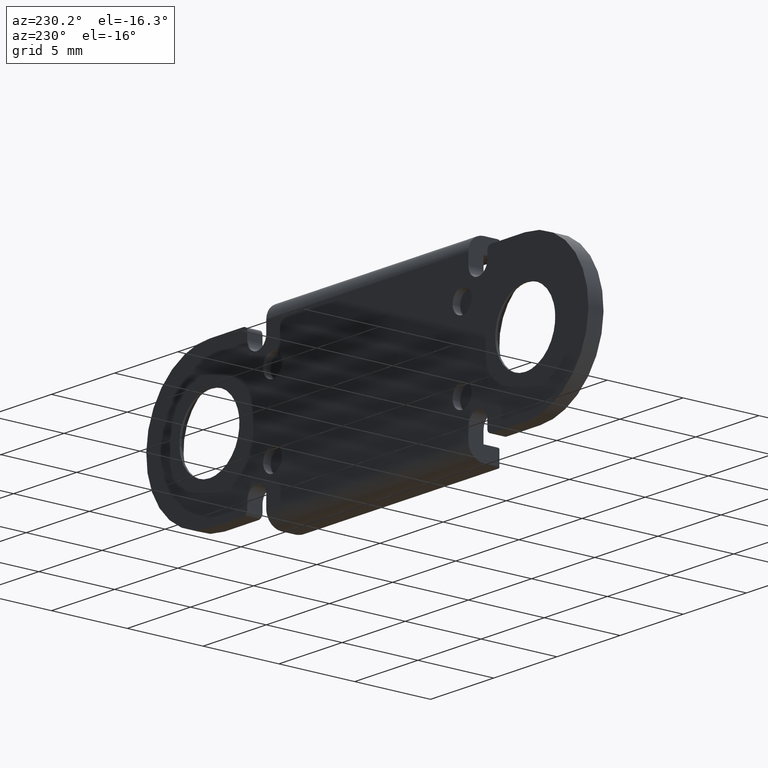
[diagram: clean part render]
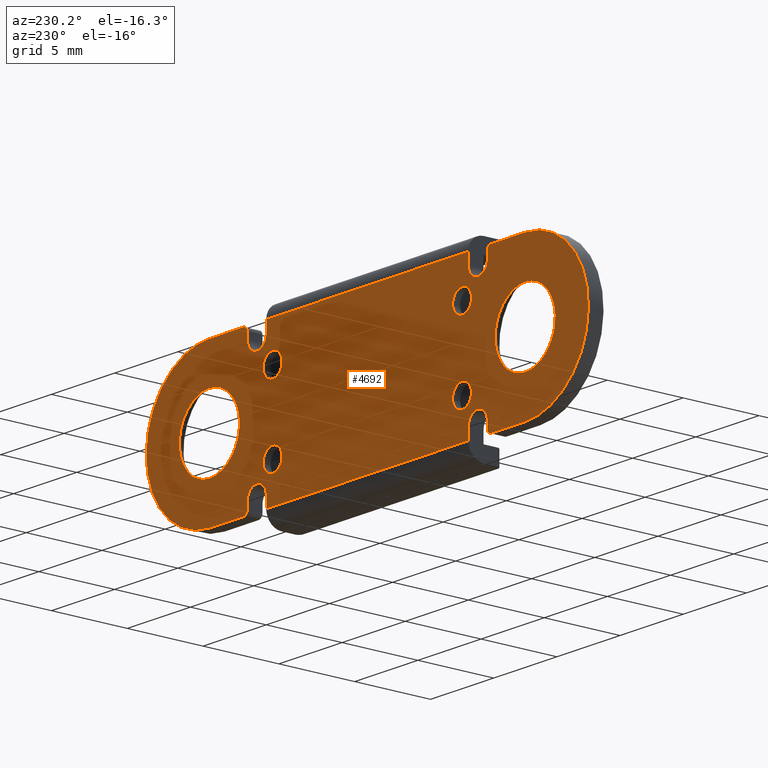
[diagram: same view with one face highlighted and labeled with its STEP entity id]
A machine part, auxiliary view. The second image highlights one B-rep face of the part: STEP entity #4692.
In plain terms, the highlighted face is a freeform B-spline surface patch.
Its self-contained STEP definition (entity closure, byte-faithful):
#1360=CARTESIAN_POINT('',(-8.247688000299576,6.938894E-018,2.558844321799307));
#1361=VERTEX_POINT('',#1360);
#1367=CARTESIAN_POINT('',(-7.500000000000000,0.0,3.250000000000000));
#1368=VERTEX_POINT('',#1367);
#1369=CARTESIAN_POINT('',(-7.500000000000000,0.0,3.250000000000000));
#1370=CARTESIAN_POINT('',(-8.193292868740469,0.0,3.250000000000000));
#1371=CARTESIAN_POINT('',(-8.247688000299577,0.0,2.558844321799308));
#1379=(BOUNDED_CURVE()B_SPLINE_CURVE(2,(#1369,#1370,#1371),.UNSPECIFIED.,.F.,.U.)B_SPLINE_CURVE_WITH_KNOTS((3,3),(0.0,0.236331300631982),.UNSPECIFIED.)CURVE()GEOMETRIC_REPRESENTATION_ITEM()RATIONAL_B_SPLINE_CURVE((1.0,0.723120658606116,0.969723356170177))REPRESENTATION_ITEM(''));
#1380=EDGE_CURVE('',#1368,#1361,#1379,.T.);
#1382=CARTESIAN_POINT('',(-6.752311999700424,6.938894E-018,2.441155678200693));
#1383=VERTEX_POINT('',#1382);
#1384=CARTESIAN_POINT('',(-6.752311999700424,0.0,2.441155678200694));
#1385=CARTESIAN_POINT('',(-6.750000000000000,0.0,2.470532419742528));
#1386=CARTESIAN_POINT('',(-6.750000000000000,0.0,2.500000000000000));
#1387=CARTESIAN_POINT('',(-6.750000000000000,0.0,3.250000000000000));
#1388=CARTESIAN_POINT('',(-7.500000000000000,0.0,3.250000000000000));
#1396=(BOUNDED_CURVE()B_SPLINE_CURVE(2,(#1384,#1385,#1386,#1387,#1388),.UNSPECIFIED.,.F.,.U.)B_SPLINE_CURVE_WITH_KNOTS((3,2,3),(0.736331300631982,0.750000000000000,1.0),.UNSPECIFIED.)CURVE()GEOMETRIC_REPRESENTATION_ITEM()RATIONAL_B_SPLINE_CURVE((0.969723356170177,0.983986122580431,1.0,0.707106781186548,1.0))REPRESENTATION_ITEM(''));
#1397=EDGE_CURVE('',#1383,#1368,#1396,.T.);
#1429=CARTESIAN_POINT('',(-7.500000000000000,0.0,1.750000000000000));
#1430=VERTEX_POINT('',#1429);
#1431=CARTESIAN_POINT('',(-7.500000000000000,0.0,1.750000000000000));
#1432=CARTESIAN_POINT('',(-6.806707131259529,0.0,1.749999999999999));
#1433=CARTESIAN_POINT('',(-6.752311999700424,0.0,2.441155678200694));
#1441=(BOUNDED_CURVE()B_SPLINE_CURVE(2,(#1431,#1432,#1433),.UNSPECIFIED.,.F.,.U.)B_SPLINE_CURVE_WITH_KNOTS((3,3),(0.500000000000000,0.736331300631982),.UNSPECIFIED.)CURVE()GEOMETRIC_REPRESENTATION_ITEM()RATIONAL_B_SPLINE_CURVE((1.0,0.723120658606116,0.969723356170177))REPRESENTATION_ITEM(''));
#1442=EDGE_CURVE('',#1430,#1383,#1441,.T.);
#1444=CARTESIAN_POINT('',(-8.247688000299577,0.0,2.558844321799308));
#1445=CARTESIAN_POINT('',(-8.250000000000000,0.0,2.529467580257473));
#1446=CARTESIAN_POINT('',(-8.250000000000000,0.0,2.500000000000000));
#1447=CARTESIAN_POINT('',(-8.250000000000000,0.0,1.750000000000000));
#1448=CARTESIAN_POINT('',(-7.500000000000000,0.0,1.750000000000000));
#1456=(BOUNDED_CURVE()B_SPLINE_CURVE(2,(#1444,#1445,#1446,#1447,#1448),.UNSPECIFIED.,.F.,.U.)B_SPLINE_CURVE_WITH_KNOTS((3,2,3),(0.236331300631982,0.250000000000000,0.500000000000000),.UNSPECIFIED.)CURVE()GEOMETRIC_REPRESENTATION_ITEM()RATIONAL_B_SPLINE_CURVE((0.969723356170177,0.983986122580431,1.0,0.707106781186548,1.0))REPRESENTATION_ITEM(''));
#1457=EDGE_CURVE('',#1361,#1430,#1456,.T.);
#1482=CARTESIAN_POINT('',(-8.247688000299576,6.938894E-018,-2.441155678200693));
#1483=VERTEX_POINT('',#1482);
#1489=CARTESIAN_POINT('',(-7.500000000000000,0.0,-1.750000000000000));
#1490=VERTEX_POINT('',#1489);
#1491=CARTESIAN_POINT('',(-7.500000000000000,0.0,-1.750000000000000));
#1492=CARTESIAN_POINT('',(-8.193292868740469,0.0,-1.749999999999999));
#1493=CARTESIAN_POINT('',(-8.247688000299577,0.0,-2.441155678200694));
#1501=(BOUNDED_CURVE()B_SPLINE_CURVE(2,(#1491,#1492,#1493),.UNSPECIFIED.,.F.,.U.)B_SPLINE_CURVE_WITH_KNOTS((3,3),(0.0,0.236331300631982),.UNSPECIFIED.)CURVE()GEOMETRIC_REPRESENTATION_ITEM()RATIONAL_B_SPLINE_CURVE((1.0,0.723120658606116,0.969723356170177))REPRESENTATION_ITEM(''));
#1502=EDGE_CURVE('',#1490,#1483,#1501,.T.);
#1504=CARTESIAN_POINT('',(-6.752311999700424,6.938894E-018,-2.558844321799307));
#1505=VERTEX_POINT('',#1504);
#1506=CARTESIAN_POINT('',(-6.752311999700424,0.0,-2.558844321799308));
#1507=CARTESIAN_POINT('',(-6.750000000000000,0.0,-2.529467580257472));
#1508=CARTESIAN_POINT('',(-6.750000000000000,0.0,-2.500000000000000));
#1509=CARTESIAN_POINT('',(-6.750000000000000,0.0,-1.750000000000000));
#1510=CARTESIAN_POINT('',(-7.500000000000000,0.0,-1.750000000000000));
#1518=(BOUNDED_CURVE()B_SPLINE_CURVE(2,(#1506,#1507,#1508,#1509,#1510),.UNSPECIFIED.,.F.,.U.)B_SPLINE_CURVE_WITH_KNOTS((3,2,3),(0.736331300631982,0.750000000000000,1.0),.UNSPECIFIED.)CURVE()GEOMETRIC_REPRESENTATION_ITEM()RATIONAL_B_SPLINE_CURVE((0.969723356170177,0.983986122580431,1.0,0.707106781186548,1.0))REPRESENTATION_ITEM(''));
#1519=EDGE_CURVE('',#1505,#1490,#1518,.T.);
#1551=CARTESIAN_POINT('',(-7.500000000000000,0.0,-3.250000000000000));
#1552=VERTEX_POINT('',#1551);
#1553=CARTESIAN_POINT('',(-7.500000000000000,0.0,-3.250000000000000));
#1554=CARTESIAN_POINT('',(-6.806707131259529,0.0,-3.250000000000000));
#1555=CARTESIAN_POINT('',(-6.752311999700424,0.0,-2.558844321799308));
#1563=(BOUNDED_CURVE()B_SPLINE_CURVE(2,(#1553,#1554,#1555),.UNSPECIFIED.,.F.,.U.)B_SPLINE_CURVE_WITH_KNOTS((3,3),(0.500000000000000,0.736331300631982),.UNSPECIFIED.)CURVE()GEOMETRIC_REPRESENTATION_ITEM()RATIONAL_B_SPLINE_CURVE((1.0,0.723120658606116,0.969723356170177))REPRESENTATION_ITEM(''));
#1564=EDGE_CURVE('',#1552,#1505,#1563,.T.);
#1566=CARTESIAN_POINT('',(-8.247688000299577,0.0,-2.441155678200693));
#1567=CARTESIAN_POINT('',(-8.250000000000002,0.0,-2.470532419742528));
#1568=CARTESIAN_POINT('',(-8.250000000000000,0.0,-2.500000000000000));
#1569=CARTESIAN_POINT('',(-8.250000000000000,0.0,-3.250000000000000));
#1570=CARTESIAN_POINT('',(-7.500000000000000,0.0,-3.250000000000000));
#1578=(BOUNDED_CURVE()B_SPLINE_CURVE(2,(#1566,#1567,#1568,#1569,#1570),.UNSPECIFIED.,.F.,.U.)B_SPLINE_CURVE_WITH_KNOTS((3,2,3),(0.236331300631982,0.250000000000000,0.500000000000000),.UNSPECIFIED.)CURVE()GEOMETRIC_REPRESENTATION_ITEM()RATIONAL_B_SPLINE_CURVE((0.969723356170178,0.983986122580431,1.0,0.707106781186548,1.0))REPRESENTATION_ITEM(''));
#1579=EDGE_CURVE('',#1483,#1552,#1578,.T.);
#1604=CARTESIAN_POINT('',(6.752311999700424,6.938894E-018,2.558844321799307));
#1605=VERTEX_POINT('',#1604);
#1611=CARTESIAN_POINT('',(7.500000000000000,0.0,3.250000000000000));
#1612=VERTEX_POINT('',#1611);
#1613=CARTESIAN_POINT('',(7.500000000000000,0.0,3.250000000000000));
#1614=CARTESIAN_POINT('',(6.806707131259529,0.0,3.250000000000000));
#1615=CARTESIAN_POINT('',(6.752311999700423,0.0,2.558844321799308));
#1623=(BOUNDED_CURVE()B_SPLINE_CURVE(2,(#1613,#1614,#1615),.UNSPECIFIED.,.F.,.U.)B_SPLINE_CURVE_WITH_KNOTS((3,3),(0.0,0.236331300631982),.UNSPECIFIED.)CURVE()GEOMETRIC_REPRESENTATION_ITEM()RATIONAL_B_SPLINE_CURVE((1.0,0.723120658606116,0.969723356170177))REPRESENTATION_ITEM(''));
#1624=EDGE_CURVE('',#1612,#1605,#1623,.T.);
#1626=CARTESIAN_POINT('',(8.247688000299576,6.938894E-018,2.441155678200693));
#1627=VERTEX_POINT('',#1626);
#1628=CARTESIAN_POINT('',(8.247688000299577,0.0,2.441155678200694));
#1629=CARTESIAN_POINT('',(8.250000000000000,0.0,2.470532419742528));
#1630=CARTESIAN_POINT('',(8.250000000000000,0.0,2.500000000000000));
#1631=CARTESIAN_POINT('',(8.250000000000000,0.0,3.250000000000000));
#1632=CARTESIAN_POINT('',(7.500000000000000,0.0,3.250000000000000));
#1640=(BOUNDED_CURVE()B_SPLINE_CURVE(2,(#1628,#1629,#1630,#1631,#1632),.UNSPECIFIED.,.F.,.U.)B_SPLINE_CURVE_WITH_KNOTS((3,2,3),(0.736331300631982,0.750000000000000,1.0),.UNSPECIFIED.)CURVE()GEOMETRIC_REPRESENTATION_ITEM()RATIONAL_B_SPLINE_CURVE((0.969723356170177,0.983986122580431,1.0,0.707106781186548,1.0))REPRESENTATION_ITEM(''));
#1641=EDGE_CURVE('',#1627,#1612,#1640,.T.);
#1673=CARTESIAN_POINT('',(7.500000000000000,0.0,1.750000000000000));
#1674=VERTEX_POINT('',#1673);
#1675=CARTESIAN_POINT('',(7.500000000000000,0.0,1.750000000000000));
#1676=CARTESIAN_POINT('',(8.193292868740469,0.0,1.749999999999999));
#1677=CARTESIAN_POINT('',(8.247688000299577,0.0,2.441155678200694));
#1685=(BOUNDED_CURVE()B_SPLINE_CURVE(2,(#1675,#1676,#1677),.UNSPECIFIED.,.F.,.U.)B_SPLINE_CURVE_WITH_KNOTS((3,3),(0.500000000000000,0.736331300631982),.UNSPECIFIED.)CURVE()GEOMETRIC_REPRESENTATION_ITEM()RATIONAL_B_SPLINE_CURVE((1.0,0.723120658606116,0.969723356170177))REPRESENTATION_ITEM(''));
#1686=EDGE_CURVE('',#1674,#1627,#1685,.T.);
#1688=CARTESIAN_POINT('',(6.752311999700424,0.0,2.558844321799307));
#1689=CARTESIAN_POINT('',(6.750000000000000,0.0,2.529467580257472));
#1690=CARTESIAN_POINT('',(6.750000000000000,0.0,2.500000000000000));
#1691=CARTESIAN_POINT('',(6.750000000000000,0.0,1.750000000000000));
#1692=CARTESIAN_POINT('',(7.500000000000000,0.0,1.750000000000000));
#1700=(BOUNDED_CURVE()B_SPLINE_CURVE(2,(#1688,#1689,#1690,#1691,#1692),.UNSPECIFIED.,.F.,.U.)B_SPLINE_CURVE_WITH_KNOTS((3,2,3),(0.236331300631982,0.250000000000000,0.500000000000000),.UNSPECIFIED.)CURVE()GEOMETRIC_REPRESENTATION_ITEM()RATIONAL_B_SPLINE_CURVE((0.969723356170178,0.983986122580431,1.0,0.707106781186548,1.0))REPRESENTATION_ITEM(''));
#1701=EDGE_CURVE('',#1605,#1674,#1700,.T.);
#1726=CARTESIAN_POINT('',(6.752311999700424,6.938894E-018,-2.441155678200693));
#1727=VERTEX_POINT('',#1726);
#1733=CARTESIAN_POINT('',(7.500000000000000,0.0,-1.750000000000000));
#1734=VERTEX_POINT('',#1733);
#1735=CARTESIAN_POINT('',(7.500000000000000,0.0,-1.750000000000000));
#1736=CARTESIAN_POINT('',(6.806707131259529,0.0,-1.749999999999999));
#1737=CARTESIAN_POINT('',(6.752311999700424,0.0,-2.441155678200693));
#1745=(BOUNDED_CURVE()B_SPLINE_CURVE(2,(#1735,#1736,#1737),.UNSPECIFIED.,.F.,.U.)B_SPLINE_CURVE_WITH_KNOTS((3,3),(0.0,0.236331300631982),.UNSPECIFIED.)CURVE()GEOMETRIC_REPRESENTATION_ITEM()RATIONAL_B_SPLINE_CURVE((1.0,0.723120658606116,0.969723356170178))REPRESENTATION_ITEM(''));
#1746=EDGE_CURVE('',#1734,#1727,#1745,.T.);
#1748=CARTESIAN_POINT('',(8.247688000299576,6.938894E-018,-2.558844321799307));
#1749=VERTEX_POINT('',#1748);
#1750=CARTESIAN_POINT('',(8.247688000299577,0.0,-2.558844321799308));
#1751=CARTESIAN_POINT('',(8.250000000000000,0.0,-2.529467580257472));
#1752=CARTESIAN_POINT('',(8.250000000000000,0.0,-2.500000000000000));
#1753=CARTESIAN_POINT('',(8.250000000000000,0.0,-1.750000000000000));
#1754=CARTESIAN_POINT('',(7.500000000000000,0.0,-1.750000000000000));
#1762=(BOUNDED_CURVE()B_SPLINE_CURVE(2,(#1750,#1751,#1752,#1753,#1754),.UNSPECIFIED.,.F.,.U.)B_SPLINE_CURVE_WITH_KNOTS((3,2,3),(0.736331300631982,0.750000000000000,1.0),.UNSPECIFIED.)CURVE()GEOMETRIC_REPRESENTATION_ITEM()RATIONAL_B_SPLINE_CURVE((0.969723356170177,0.983986122580431,1.0,0.707106781186548,1.0))REPRESENTATION_ITEM(''));
#1763=EDGE_CURVE('',#1749,#1734,#1762,.T.);
#1795=CARTESIAN_POINT('',(7.500000000000000,0.0,-3.250000000000000));
#1796=VERTEX_POINT('',#1795);
#1797=CARTESIAN_POINT('',(7.500000000000000,0.0,-3.250000000000000));
#1798=CARTESIAN_POINT('',(8.193292868740469,0.0,-3.250000000000000));
#1799=CARTESIAN_POINT('',(8.247688000299577,0.0,-2.558844321799308));
#1807=(BOUNDED_CURVE()B_SPLINE_CURVE(2,(#1797,#1798,#1799),.UNSPECIFIED.,.F.,.U.)B_SPLINE_CURVE_WITH_KNOTS((3,3),(0.500000000000000,0.736331300631982),.UNSPECIFIED.)CURVE()GEOMETRIC_REPRESENTATION_ITEM()RATIONAL_B_SPLINE_CURVE((1.0,0.723120658606116,0.969723356170177))REPRESENTATION_ITEM(''));
#1808=EDGE_CURVE('',#1796,#1749,#1807,.T.);
#1810=CARTESIAN_POINT('',(6.752311999700424,0.0,-2.441155678200693));
#1811=CARTESIAN_POINT('',(6.750000000000000,0.0,-2.470532419742528));
#1812=CARTESIAN_POINT('',(6.750000000000000,0.0,-2.500000000000000));
#1813=CARTESIAN_POINT('',(6.750000000000000,0.0,-3.250000000000000));
#1814=CARTESIAN_POINT('',(7.500000000000000,0.0,-3.250000000000000));
#1822=(BOUNDED_CURVE()B_SPLINE_CURVE(2,(#1810,#1811,#1812,#1813,#1814),.UNSPECIFIED.,.F.,.U.)B_SPLINE_CURVE_WITH_KNOTS((3,2,3),(0.236331300631982,0.250000000000000,0.500000000000000),.UNSPECIFIED.)CURVE()GEOMETRIC_REPRESENTATION_ITEM()RATIONAL_B_SPLINE_CURVE((0.969723356170178,0.983986122580431,1.0,0.707106781186548,1.0))REPRESENTATION_ITEM(''));
#1823=EDGE_CURVE('',#1727,#1796,#1822,.T.);
#2343=CARTESIAN_POINT('',(-10.129429853752740,4.553649E-018,-0.144990281412709));
#2344=VERTEX_POINT('',#2343);
#2384=CARTESIAN_POINT('',(-14.870570146242700,4.553649E-018,0.144990281412709));
#2385=VERTEX_POINT('',#2384);
#2391=CARTESIAN_POINT('',(-12.499999999997719,0.0,2.374999999995310));
#2392=VERTEX_POINT('',#2391);
#2393=CARTESIAN_POINT('',(-12.499999999997719,0.0,2.374999999995310));
#2394=CARTESIAN_POINT('',(-14.734176908876954,2.276825E-018,2.374999999995274));
#2395=CARTESIAN_POINT('',(-14.870570146242695,4.553649E-018,0.144990281412709));
#2403=(BOUNDED_CURVE()B_SPLINE_CURVE(2,(#2393,#2394,#2395),.UNSPECIFIED.,.F.,.U.)B_SPLINE_CURVE_WITH_KNOTS((3,3),(0.500000000000000,0.739332962240674),.UNSPECIFIED.)CURVE()GEOMETRIC_REPRESENTATION_ITEM()RATIONAL_B_SPLINE_CURVE((1.0,0.719603993284682,0.976072041670428))REPRESENTATION_ITEM(''));
#2404=EDGE_CURVE('',#2392,#2385,#2403,.T.);
#2406=CARTESIAN_POINT('',(-10.129429853752740,4.553649E-018,-0.144990281412709));
#2407=CARTESIAN_POINT('',(-10.125000000003578,4.488211E-018,-0.072562812842850));
#2408=CARTESIAN_POINT('',(-10.125000000003560,4.418647E-018,7.029437E-014));
#2409=CARTESIAN_POINT('',(-10.125000000002968,2.141823E-018,2.374999999995344));
#2410=CARTESIAN_POINT('',(-12.499999999997719,0.0,2.374999999995310));
#2418=(BOUNDED_CURVE()B_SPLINE_CURVE(2,(#2406,#2407,#2408,#2409,#2410),.UNSPECIFIED.,.F.,.U.)B_SPLINE_CURVE_WITH_KNOTS((3,2,3),(0.239332962240674,0.250000000000000,0.500000000000000),.UNSPECIFIED.)CURVE()GEOMETRIC_REPRESENTATION_ITEM()RATIONAL_B_SPLINE_CURVE((0.976072041670428,0.987502787901865,1.0,0.707106781186548,1.0))REPRESENTATION_ITEM(''));
#2419=EDGE_CURVE('',#2344,#2392,#2418,.T.);
#2443=CARTESIAN_POINT('',(-12.499999999997719,0.0,-2.374999999995310));
#2444=VERTEX_POINT('',#2443);
#2445=CARTESIAN_POINT('',(-12.499999999997719,0.0,-2.374999999995310));
#2446=CARTESIAN_POINT('',(-10.265823091118490,2.276825E-018,-2.374999999995274));
#2447=CARTESIAN_POINT('',(-10.129429853752740,4.553649E-018,-0.144990281412709));
#2455=(BOUNDED_CURVE()B_SPLINE_CURVE(2,(#2445,#2446,#2447),.UNSPECIFIED.,.F.,.U.)B_SPLINE_CURVE_WITH_KNOTS((3,3),(0.0,0.239332962240674),.UNSPECIFIED.)CURVE()GEOMETRIC_REPRESENTATION_ITEM()RATIONAL_B_SPLINE_CURVE((1.0,0.719603993284682,0.976072041670428))REPRESENTATION_ITEM(''));
#2456=EDGE_CURVE('',#2444,#2344,#2455,.T.);
#2458=CARTESIAN_POINT('',(-14.870570146242695,4.553649E-018,0.144990281412709));
#2459=CARTESIAN_POINT('',(-14.874999999991859,4.488211E-018,0.072562812842850));
#2460=CARTESIAN_POINT('',(-14.874999999991880,4.418647E-018,-6.954025E-014));
#2461=CARTESIAN_POINT('',(-14.874999999992470,2.141823E-018,-2.374999999995344));
#2462=CARTESIAN_POINT('',(-12.499999999997719,0.0,-2.374999999995310));
#2470=(BOUNDED_CURVE()B_SPLINE_CURVE(2,(#2458,#2459,#2460,#2461,#2462),.UNSPECIFIED.,.F.,.U.)B_SPLINE_CURVE_WITH_KNOTS((3,2,3),(0.739332962240674,0.750000000000000,1.0),.UNSPECIFIED.)CURVE()GEOMETRIC_REPRESENTATION_ITEM()RATIONAL_B_SPLINE_CURVE((0.976072041670428,0.987502787901866,1.0,0.707106781186548,1.0))REPRESENTATION_ITEM(''));
#2471=EDGE_CURVE('',#2385,#2444,#2470,.T.);
#2647=CARTESIAN_POINT('',(14.870570146247280,4.553649E-018,-0.144990281412709));
#2648=VERTEX_POINT('',#2647);
#2688=CARTESIAN_POINT('',(10.129429853757321,4.553649E-018,0.144990281412709));
#2689=VERTEX_POINT('',#2688);
#2695=CARTESIAN_POINT('',(12.500000000002300,0.0,2.374999999995310));
#2696=VERTEX_POINT('',#2695);
#2697=CARTESIAN_POINT('',(12.500000000002300,0.0,2.374999999995310));
#2698=CARTESIAN_POINT('',(10.265823091123069,2.276825E-018,2.374999999995274));
#2699=CARTESIAN_POINT('',(10.129429853757321,4.553649E-018,0.144990281412709));
#2707=(BOUNDED_CURVE()B_SPLINE_CURVE(2,(#2697,#2698,#2699),.UNSPECIFIED.,.F.,.U.)B_SPLINE_CURVE_WITH_KNOTS((3,3),(0.500000000000000,0.739332962240674),.UNSPECIFIED.)CURVE()GEOMETRIC_REPRESENTATION_ITEM()RATIONAL_B_SPLINE_CURVE((1.0,0.719603993284682,0.976072041670428))REPRESENTATION_ITEM(''));
#2708=EDGE_CURVE('',#2696,#2689,#2707,.T.);
#2710=CARTESIAN_POINT('',(14.870570146247278,4.553649E-018,-0.144990281412709));
#2711=CARTESIAN_POINT('',(14.874999999996447,4.488211E-018,-0.072562812842850));
#2712=CARTESIAN_POINT('',(14.874999999996460,4.418647E-018,7.040210E-014));
#2713=CARTESIAN_POINT('',(14.874999999997051,2.141823E-018,2.374999999995344));
#2714=CARTESIAN_POINT('',(12.500000000002300,0.0,2.374999999995310));
#2722=(BOUNDED_CURVE()B_SPLINE_CURVE(2,(#2710,#2711,#2712,#2713,#2714),.UNSPECIFIED.,.F.,.U.)B_SPLINE_CURVE_WITH_KNOTS((3,2,3),(0.239332962240674,0.250000000000000,0.500000000000000),.UNSPECIFIED.)CURVE()GEOMETRIC_REPRESENTATION_ITEM()RATIONAL_B_SPLINE_CURVE((0.976072041670428,0.987502787901865,1.0,0.707106781186548,1.0))REPRESENTATION_ITEM(''));
#2723=EDGE_CURVE('',#2648,#2696,#2722,.T.);
#2747=CARTESIAN_POINT('',(12.500000000002300,0.0,-2.374999999995310));
#2748=VERTEX_POINT('',#2747);
#2749=CARTESIAN_POINT('',(12.500000000002300,0.0,-2.374999999995310));
#2750=CARTESIAN_POINT('',(14.734176908881539,2.276825E-018,-2.374999999995274));
#2751=CARTESIAN_POINT('',(14.870570146247278,4.553649E-018,-0.144990281412709));
#2759=(BOUNDED_CURVE()B_SPLINE_CURVE(2,(#2749,#2750,#2751),.UNSPECIFIED.,.F.,.U.)B_SPLINE_CURVE_WITH_KNOTS((3,3),(0.0,0.239332962240674),.UNSPECIFIED.)CURVE()GEOMETRIC_REPRESENTATION_ITEM()RATIONAL_B_SPLINE_CURVE((1.0,0.719603993284682,0.976072041670428))REPRESENTATION_ITEM(''));
#2760=EDGE_CURVE('',#2748,#2648,#2759,.T.);
#2762=CARTESIAN_POINT('',(10.129429853757321,4.553649E-018,0.144990281412709));
#2763=CARTESIAN_POINT('',(10.125000000008157,4.488211E-018,0.072562812842850));
#2764=CARTESIAN_POINT('',(10.125000000008139,4.418647E-018,-6.954025E-014));
#2765=CARTESIAN_POINT('',(10.125000000007548,2.141823E-018,-2.374999999995344));
#2766=CARTESIAN_POINT('',(12.500000000002300,0.0,-2.374999999995310));
#2774=(BOUNDED_CURVE()B_SPLINE_CURVE(2,(#2762,#2763,#2764,#2765,#2766),.UNSPECIFIED.,.F.,.U.)B_SPLINE_CURVE_WITH_KNOTS((3,2,3),(0.739332962240674,0.750000000000000,1.0),.UNSPECIFIED.)CURVE()GEOMETRIC_REPRESENTATION_ITEM()RATIONAL_B_SPLINE_CURVE((0.976072041670428,0.987502787901866,1.0,0.707106781186548,1.0))REPRESENTATION_ITEM(''));
#2775=EDGE_CURVE('',#2689,#2748,#2774,.T.);
#3420=CARTESIAN_POINT('',(8.0,0.0,-5.0));
#3421=VERTEX_POINT('',#3420);
#3442=CARTESIAN_POINT('',(-8.0,0.0,-5.0));
#3443=VERTEX_POINT('',#3442);
#3457=CARTESIAN_POINT('',(8.0,0.0,-5.0));
#3458=CARTESIAN_POINT('',(-8.0,0.0,-5.0));
#3459=QUASI_UNIFORM_CURVE('',1,(#3457,#3458),.UNSPECIFIED.,.F.,.U.);
#3460=EDGE_CURVE('',#3421,#3443,#3459,.T.);
#3481=CARTESIAN_POINT('',(-8.0,0.0,5.0));
#3482=VERTEX_POINT('',#3481);
#3503=CARTESIAN_POINT('',(8.0,0.0,5.0));
#3504=VERTEX_POINT('',#3503);
#3518=CARTESIAN_POINT('',(-8.0,0.0,5.0));
#3519=CARTESIAN_POINT('',(8.0,0.0,5.0));
#3520=QUASI_UNIFORM_CURVE('',1,(#3518,#3519),.UNSPECIFIED.,.F.,.U.);
#3521=EDGE_CURVE('',#3482,#3504,#3520,.T.);
#3872=CARTESIAN_POINT('',(-12.500000000000000,0.0,4.999999999996359));
#3873=VERTEX_POINT('',#3872);
#3874=CARTESIAN_POINT('',(-12.500000000000000,0.0,-5.0));
#3875=VERTEX_POINT('',#3874);
#3876=CARTESIAN_POINT('',(-12.500000000000000,0.0,4.999999999996359));
#3877=CARTESIAN_POINT('',(-12.837471256773210,0.0,5.000042373397833));
#3878=CARTESIAN_POINT('',(-13.410139001796139,0.0,4.941798291406716));
#3879=CARTESIAN_POINT('',(-14.130802863539110,0.0,4.739959757672422));
#3880=CARTESIAN_POINT('',(-14.716638994773030,0.0,4.495190380214840));
#3881=CARTESIAN_POINT('',(-15.296336704443570,0.0,4.166816873093154));
#3882=CARTESIAN_POINT('',(-15.838213775873429,0.0,3.743922815056382));
#3883=CARTESIAN_POINT('',(-16.358826919885800,0.0,3.207090825893454));
#3884=CARTESIAN_POINT('',(-16.821839282590709,0.0,2.566556391720688));
#3885=CARTESIAN_POINT('',(-17.195450403761591,0.0,1.788971180275687));
#3886=CARTESIAN_POINT('',(-17.407985098695441,0.0,1.038800185909330));
#3887=CARTESIAN_POINT('',(-17.515565529180890,0.0,0.246902604047202));
#3888=CARTESIAN_POINT('',(-17.495891245083879,0.0,-0.554359208761310));
#3889=CARTESIAN_POINT('',(-17.326695954212980,0.0,-1.378410137307216));
#3890=CARTESIAN_POINT('',(-17.076592138560439,0.0,-2.051228419793382));
#3891=CARTESIAN_POINT('',(-16.767479170995959,0.0,-2.629534191125897));
#3892=CARTESIAN_POINT('',(-16.413500861757800,0.0,-3.132148296765518));
#3893=CARTESIAN_POINT('',(-16.028172450190660,0.0,-3.557273164593561));
#3894=CARTESIAN_POINT('',(-15.483612581036629,0.0,-4.038873544940544));
#3895=CARTESIAN_POINT('',(-14.798451128356700,0.0,-4.475695507260471));
#3896=CARTESIAN_POINT('',(-14.015019402132250,0.0,-4.783374118010920));
#3897=CARTESIAN_POINT('',(-13.266972701354479,0.0,-4.958591804993184));
#3898=CARTESIAN_POINT('',(-12.786340317589231,0.0,-5.000024638846506));
#3899=CARTESIAN_POINT('',(-12.500000000000000,0.0,-5.0));
#3900=B_SPLINE_CURVE_WITH_KNOTS('',3,(#3876,#3877,#3878,#3879,#3880,#3881,#3882,#3883,#3884,#3885,#3886,#3887,#3888,#3889,#3890,#3891,#3892,#3893,#3894,#3895,#3896,#3897,#3898,#3899),.UNSPECIFIED.,.F.,.U.,(4,1,1,1,1,1,1,1,1,1,1,1,1,1,1,1,1,1,1,1,1,4),(0.000000072802772,1.012406836403784,1.718058187873551,2.239603829452548,2.914562066498093,3.712238635647310,4.295156795524083,5.154189874847647,6.074591002468290,6.872266567447111,7.485862016923646,8.467577909625371,9.265249590119202,10.001556354241631,10.615155385029690,11.228754447748200,11.842350930080400,12.333229240132200,13.407019088999739,14.266059601757229,14.848970282957650,15.707987909180870),.UNSPECIFIED.);
#3901=EDGE_CURVE('',#3873,#3875,#3900,.T.);
#3922=CARTESIAN_POINT('',(-9.799999999999999,0.0,-4.999999999999870));
#3923=VERTEX_POINT('',#3922);
#3924=CARTESIAN_POINT('',(-9.799999999999999,0.0,-4.999999999999870));
#3925=CARTESIAN_POINT('',(-12.500000000000000,0.0,-5.0));
#3926=QUASI_UNIFORM_CURVE('',1,(#3924,#3925),.UNSPECIFIED.,.F.,.U.);
#3927=EDGE_CURVE('',#3923,#3875,#3926,.T.);
#3953=CARTESIAN_POINT('',(-9.500000000000000,0.0,-4.699999999999880));
#3954=VERTEX_POINT('',#3953);
#3955=CARTESIAN_POINT('',(-9.799999999999999,0.0,-4.999999999999880));
#3956=CARTESIAN_POINT('',(-9.500000000000000,0.0,-4.999999999999881));
#3957=CARTESIAN_POINT('',(-9.500000000000000,0.0,-4.699999999999880));
#3965=(BOUNDED_CURVE()B_SPLINE_CURVE(2,(#3955,#3956,#3957),.UNSPECIFIED.,.F.,.U.)CURVE()GEOMETRIC_REPRESENTATION_ITEM()QUASI_UNIFORM_CURVE()RATIONAL_B_SPLINE_CURVE((1.0,0.707106781186547,1.0))REPRESENTATION_ITEM(''));
#3966=EDGE_CURVE('',#3923,#3954,#3965,.T.);
#3983=CARTESIAN_POINT('',(-9.500000000000000,0.0,-4.249999999999885));
#3984=VERTEX_POINT('',#3983);
#3985=CARTESIAN_POINT('',(-9.500000000000000,0.0,-4.249999999999885));
#3986=CARTESIAN_POINT('',(-9.500000000000000,0.0,-4.699999999999880));
#3987=QUASI_UNIFORM_CURVE('',1,(#3985,#3986),.UNSPECIFIED.,.F.,.U.);
#3988=EDGE_CURVE('',#3984,#3954,#3987,.T.);
#4018=CARTESIAN_POINT('',(-8.0,0.0,-4.249999999999885));
#4019=VERTEX_POINT('',#4018);
#4020=CARTESIAN_POINT('',(-8.0,0.0,-4.249999999999885));
#4021=CARTESIAN_POINT('',(-7.999891432558711,0.0,-4.145675653934065));
#4022=CARTESIAN_POINT('',(-8.036415999460948,0.0,-3.973973474410853));
#4023=CARTESIAN_POINT('',(-8.156668724036102,0.0,-3.778938778397759));
#4024=CARTESIAN_POINT('',(-8.280397386376563,0.0,-3.658223136769176));
#4025=CARTESIAN_POINT('',(-8.431457992392383,0.0,-3.562550611981839));
#4026=CARTESIAN_POINT('',(-8.631690319345079,0.0,-3.496345669423914));
#4027=CARTESIAN_POINT('',(-8.843391475206333,0.0,-3.496372402425264));
#4028=CARTESIAN_POINT('',(-9.039479664061590,0.0,-3.550668374361477));
#4029=CARTESIAN_POINT('',(-9.218534272776301,0.0,-3.649158363754141));
#4030=CARTESIAN_POINT('',(-9.360214529459393,0.0,-3.797980109644996));
#4031=CARTESIAN_POINT('',(-9.470650308539485,0.0,-4.004637094732663));
#4032=CARTESIAN_POINT('',(-9.500108207331953,0.0,-4.151806317646508));
#4033=CARTESIAN_POINT('',(-9.500000000000000,0.0,-4.249999999999885));
#4034=B_SPLINE_CURVE_WITH_KNOTS('',3,(#4020,#4021,#4022,#4023,#4024,#4025,#4026,#4027,#4028,#4029,#4030,#4031,#4032,#4033),.UNSPECIFIED.,.F.,.U.,(4,1,1,1,1,1,1,1,1,1,1,4),(0.000000024615595,0.312927799011112,0.515430688659626,0.681109972217017,0.828383949672090,1.049287336879404,1.306963670426514,1.454236594368059,1.656740469752019,1.914457984025834,2.061724029076497,2.356253616786607),.UNSPECIFIED.);
#4035=EDGE_CURVE('',#4019,#3984,#4034,.T.);
#4052=CARTESIAN_POINT('',(-8.0,0.0,-5.0));
#4053=CARTESIAN_POINT('',(-8.0,0.0,-4.249999999999885));
#4054=QUASI_UNIFORM_CURVE('',1,(#4052,#4053),.UNSPECIFIED.,.F.,.U.);
#4055=EDGE_CURVE('',#3443,#4019,#4054,.T.);
#4095=CARTESIAN_POINT('',(8.0,0.0,-4.249999999999885));
#4096=VERTEX_POINT('',#4095);
#4097=CARTESIAN_POINT('',(8.0,0.0,-4.249999999999885));
#4098=CARTESIAN_POINT('',(8.0,0.0,-5.0));
#4099=QUASI_UNIFORM_CURVE('',1,(#4097,#4098),.UNSPECIFIED.,.F.,.U.);
#4100=EDGE_CURVE('',#4096,#3421,#4099,.T.);
#4131=CARTESIAN_POINT('',(9.500000000000000,0.0,-4.249999999999885));
#4132=VERTEX_POINT('',#4131);
#4133=CARTESIAN_POINT('',(9.500000000000000,0.0,-4.249999999999885));
#4134=CARTESIAN_POINT('',(9.500008932391609,0.0,-4.188647558820258));
#4135=CARTESIAN_POINT('',(9.483366011316578,0.0,-4.053653572446301));
#4136=CARTESIAN_POINT('',(9.412157578231948,0.0,-3.881746813280254));
#4137=CARTESIAN_POINT('',(9.290949967056339,0.0,-3.718295262559990));
#4138=CARTESIAN_POINT('',(9.130844573677614,0.0,-3.590152067965391));
#4139=CARTESIAN_POINT('',(8.905144535600224,0.0,-3.503072194011714));
#4140=CARTESIAN_POINT('',(8.668812203823391,0.0,-3.491458391869253));
#4141=CARTESIAN_POINT('',(8.459590222021841,0.0,-3.549394786455490));
#4142=CARTESIAN_POINT('',(8.304915427765510,0.0,-3.639568127569779));
#4143=CARTESIAN_POINT('',(8.181559743617122,0.0,-3.751365227716788));
#4144=CARTESIAN_POINT('',(8.088998718845737,0.0,-3.882782555202492));
#4145=CARTESIAN_POINT('',(8.018225378823024,0.0,-4.053679956148291));
#4146=CARTESIAN_POINT('',(7.999968565918031,0.0,-4.176370182966614));
#4147=CARTESIAN_POINT('',(8.0,0.0,-4.249999999999885));
#4148=B_SPLINE_CURVE_WITH_KNOTS('',3,(#4133,#4134,#4135,#4136,#4137,#4138,#4139,#4140,#4141,#4142,#4143,#4144,#4145,#4146,#4147),.UNSPECIFIED.,.F.,.U.,(4,1,1,1,1,1,1,1,1,1,1,1,4),(0.000000024625145,0.184064472199401,0.404979254541367,0.552246291878491,0.791561867797104,1.012473312307352,1.270150938498062,1.491053061116719,1.656740469754399,1.804008147711618,1.988101065290408,2.135372156046156,2.356253616786542),.UNSPECIFIED.);
#4149=EDGE_CURVE('',#4132,#4096,#4148,.T.);
#4166=CARTESIAN_POINT('',(9.500000000000000,0.0,-4.699999999999880));
#4167=VERTEX_POINT('',#4166);
#4168=CARTESIAN_POINT('',(9.500000000000000,0.0,-4.699999999999880));
#4169=CARTESIAN_POINT('',(9.500000000000000,0.0,-4.249999999999885));
#4170=QUASI_UNIFORM_CURVE('',1,(#4168,#4169),.UNSPECIFIED.,.F.,.U.);
#4171=EDGE_CURVE('',#4167,#4132,#4170,.T.);
#4197=CARTESIAN_POINT('',(9.799999999999999,0.0,-5.0));
#4198=VERTEX_POINT('',#4197);
#4199=CARTESIAN_POINT('',(9.500000000000000,0.0,-4.699999999999880));
#4200=CARTESIAN_POINT('',(9.500000000000000,0.0,-4.999999999999881));
#4201=CARTESIAN_POINT('',(9.799999999999999,0.0,-4.999999999999880));
#4209=(BOUNDED_CURVE()B_SPLINE_CURVE(2,(#4199,#4200,#4201),.UNSPECIFIED.,.F.,.U.)CURVE()GEOMETRIC_REPRESENTATION_ITEM()QUASI_UNIFORM_CURVE()RATIONAL_B_SPLINE_CURVE((1.0,0.707106781186547,1.0))REPRESENTATION_ITEM(''));
#4210=EDGE_CURVE('',#4167,#4198,#4209,.T.);
#4227=CARTESIAN_POINT('',(12.500000000000000,0.0,-4.999999999996359));
#4228=VERTEX_POINT('',#4227);
#4229=CARTESIAN_POINT('',(12.500000000000000,0.0,-4.999999999996359));
#4230=CARTESIAN_POINT('',(9.799999999999999,0.0,-5.0));
#4231=QUASI_UNIFORM_CURVE('',1,(#4229,#4230),.UNSPECIFIED.,.F.,.U.);
#4232=EDGE_CURVE('',#4228,#4198,#4231,.T.);
#4262=CARTESIAN_POINT('',(12.500000000000000,0.0,5.0));
#4263=VERTEX_POINT('',#4262);
#4264=CARTESIAN_POINT('',(12.500000000000000,0.0,-4.999999999996359));
#4265=CARTESIAN_POINT('',(12.837471256773210,0.0,-5.000042373397833));
#4266=CARTESIAN_POINT('',(13.410139001796139,0.0,-4.941798291406716));
#4267=CARTESIAN_POINT('',(14.130802863539110,0.0,-4.739959757672422));
#4268=CARTESIAN_POINT('',(14.716638994773030,0.0,-4.495190380214840));
#4269=CARTESIAN_POINT('',(15.296336704443570,0.0,-4.166816873093154));
#4270=CARTESIAN_POINT('',(15.838213775873429,0.0,-3.743922815056382));
#4271=CARTESIAN_POINT('',(16.358826919885800,0.0,-3.207090825893454));
#4272=CARTESIAN_POINT('',(16.821839282590709,0.0,-2.566556391720688));
#4273=CARTESIAN_POINT('',(17.195450403761591,0.0,-1.788971180275687));
#4274=CARTESIAN_POINT('',(17.407985098695441,0.0,-1.038800185909330));
#4275=CARTESIAN_POINT('',(17.515565529180890,0.0,-0.246902604047202));
#4276=CARTESIAN_POINT('',(17.495891245083879,0.0,0.554359208761310));
#4277=CARTESIAN_POINT('',(17.326695954212980,0.0,1.378410137307216));
#4278=CARTESIAN_POINT('',(17.076592138560439,0.0,2.051228419793382));
#4279=CARTESIAN_POINT('',(16.767479170995959,0.0,2.629534191125897));
#4280=CARTESIAN_POINT('',(16.413500861757800,0.0,3.132148296765518));
#4281=CARTESIAN_POINT('',(16.028172450190660,0.0,3.557273164593561));
#4282=CARTESIAN_POINT('',(15.483612581036629,0.0,4.038873544940544));
#4283=CARTESIAN_POINT('',(14.798451128356700,0.0,4.475695507260471));
#4284=CARTESIAN_POINT('',(14.015019402132250,0.0,4.783374118010920));
#4285=CARTESIAN_POINT('',(13.266972701354479,0.0,4.958591804993184));
#4286=CARTESIAN_POINT('',(12.786340317589231,0.0,5.000024638846506));
#4287=CARTESIAN_POINT('',(12.500000000000000,0.0,5.0));
#4288=B_SPLINE_CURVE_WITH_KNOTS('',3,(#4264,#4265,#4266,#4267,#4268,#4269,#4270,#4271,#4272,#4273,#4274,#4275,#4276,#4277,#4278,#4279,#4280,#4281,#4282,#4283,#4284,#4285,#4286,#4287),.UNSPECIFIED.,.F.,.U.,(4,1,1,1,1,1,1,1,1,1,1,1,1,1,1,1,1,1,1,1,1,4),(0.000000072802772,1.012406836403784,1.718058187873551,2.239603829452548,2.914562066498093,3.712238635647310,4.295156795524083,5.154189874847647,6.074591002468290,6.872266567447111,7.485862016923646,8.467577909625371,9.265249590119202,10.001556354241631,10.615155385029690,11.228754447748200,11.842350930080400,12.333229240132200,13.407019088999739,14.266059601757229,14.848970282957650,15.707987909180870),.UNSPECIFIED.);
#4289=EDGE_CURVE('',#4228,#4263,#4288,.T.);
#4306=CARTESIAN_POINT('',(9.799999999999999,0.0,5.000000000000131));
#4307=VERTEX_POINT('',#4306);
#4308=CARTESIAN_POINT('',(9.799999999999999,0.0,5.000000000000131));
#4309=CARTESIAN_POINT('',(12.500000000000000,0.0,5.0));
#4310=QUASI_UNIFORM_CURVE('',1,(#4308,#4309),.UNSPECIFIED.,.F.,.U.);
#4311=EDGE_CURVE('',#4307,#4263,#4310,.T.);
#4337=CARTESIAN_POINT('',(9.500000000000000,0.0,4.700000000000130));
#4338=VERTEX_POINT('',#4337);
#4339=CARTESIAN_POINT('',(9.799999999999999,0.0,5.000000000000131));
#4340=CARTESIAN_POINT('',(9.500000000000000,0.0,5.000000000000132));
#4341=CARTESIAN_POINT('',(9.500000000000000,0.0,4.700000000000130));
#4349=(BOUNDED_CURVE()B_SPLINE_CURVE(2,(#4339,#4340,#4341),.UNSPECIFIED.,.F.,.U.)CURVE()GEOMETRIC_REPRESENTATION_ITEM()QUASI_UNIFORM_CURVE()RATIONAL_B_SPLINE_CURVE((1.0,0.707106781186547,1.0))REPRESENTATION_ITEM(''));
#4350=EDGE_CURVE('',#4307,#4338,#4349,.T.);
#4367=CARTESIAN_POINT('',(9.500000000000000,0.0,4.250000000000000));
#4368=VERTEX_POINT('',#4367);
#4369=CARTESIAN_POINT('',(9.500000000000000,0.0,4.250000000000000));
#4370=CARTESIAN_POINT('',(9.500000000000000,0.0,4.700000000000130));
#4371=QUASI_UNIFORM_CURVE('',1,(#4369,#4370),.UNSPECIFIED.,.F.,.U.);
#4372=EDGE_CURVE('',#4368,#4338,#4371,.T.);
#4402=CARTESIAN_POINT('',(8.0,0.0,4.250000000000000));
#4403=VERTEX_POINT('',#4402);
#4404=CARTESIAN_POINT('',(8.0,0.0,4.250000000000000));
#4405=CARTESIAN_POINT('',(7.999991158308205,0.0,4.188647724794423));
#4406=CARTESIAN_POINT('',(8.016633513988589,0.0,4.053653097224735));
#4407=CARTESIAN_POINT('',(8.087837939001640,0.0,3.881741930108387));
#4408=CARTESIAN_POINT('',(8.187035245424893,0.0,3.748037102792325));
#4409=CARTESIAN_POINT('',(8.290819721176863,0.0,3.651637219781380));
#4410=CARTESIAN_POINT('',(8.441863724363856,0.0,3.555910496391491));
#4411=CARTESIAN_POINT('',(8.620609823909708,0.0,3.501706106474162));
#4412=CARTESIAN_POINT('',(8.805528712212579,0.0,3.497216696060626));
#4413=CARTESIAN_POINT('',(8.957389457229738,0.0,3.523560081438170));
#4414=CARTESIAN_POINT('',(9.123645354231964,0.0,3.590008918808533));
#4415=CARTESIAN_POINT('',(9.268115657388979,0.0,3.697170933474836));
#4416=CARTESIAN_POINT('',(9.377614798318479,0.0,3.830640903813953));
#4417=CARTESIAN_POINT('',(9.470669929145188,0.0,4.004629169990887));
#4418=CARTESIAN_POINT('',(9.500094103758856,0.0,4.151808830910742));
#4419=CARTESIAN_POINT('',(9.500000000000000,0.0,4.250000000000000));
#4420=B_SPLINE_CURVE_WITH_KNOTS('',3,(#4404,#4405,#4406,#4407,#4408,#4409,#4410,#4411,#4412,#4413,#4414,#4415,#4416,#4417,#4418,#4419),.UNSPECIFIED.,.F.,.U.,(4,1,1,1,1,1,1,1,1,1,1,1,1,4),(0.000000024615537,0.184064472190548,0.404979254533430,0.552246291871186,0.681109972216710,0.828383949671743,1.086098577035771,1.233341359590827,1.380606199633507,1.546290390891470,1.767191092378299,1.914457984025803,2.061724029076518,2.356253616786609),.UNSPECIFIED.);
#4421=EDGE_CURVE('',#4403,#4368,#4420,.T.);
#4438=CARTESIAN_POINT('',(8.0,0.0,5.0));
#4439=CARTESIAN_POINT('',(8.0,0.0,4.250000000000000));
#4440=QUASI_UNIFORM_CURVE('',1,(#4438,#4439),.UNSPECIFIED.,.F.,.U.);
#4441=EDGE_CURVE('',#3504,#4403,#4440,.T.);
#4481=CARTESIAN_POINT('',(-8.0,0.0,4.250000000000000));
#4482=VERTEX_POINT('',#4481);
#4483=CARTESIAN_POINT('',(-8.0,0.0,4.250000000000000));
#4484=CARTESIAN_POINT('',(-8.0,0.0,5.0));
#4485=QUASI_UNIFORM_CURVE('',1,(#4483,#4484),.UNSPECIFIED.,.F.,.U.);
#4486=EDGE_CURVE('',#4482,#3482,#4485,.T.);
#4517=CARTESIAN_POINT('',(-9.500000000000000,0.0,4.250000000000000));
#4518=VERTEX_POINT('',#4517);
#4519=CARTESIAN_POINT('',(-9.500000000000000,0.0,4.250000000000000));
#4520=CARTESIAN_POINT('',(-9.500016626961083,0.0,4.188645271297613));
#4521=CARTESIAN_POINT('',(-9.485611320938308,0.0,4.072075192640729));
#4522=CARTESIAN_POINT('',(-9.425395710891653,0.0,3.910047695973340));
#4523=CARTESIAN_POINT('',(-9.321047874128730,0.0,3.749595727682218));
#4524=CARTESIAN_POINT('',(-9.181391093648102,0.0,3.626117786455386));
#4525=CARTESIAN_POINT('',(-8.999631338819226,0.0,3.534626010993619));
#4526=CARTESIAN_POINT('',(-8.830191544624583,0.0,3.496591736536807));
#4527=CARTESIAN_POINT('',(-8.626778792604975,0.0,3.501573677383196));
#4528=CARTESIAN_POINT('',(-8.453704809609421,0.0,3.551741343362595));
#4529=CARTESIAN_POINT('',(-8.300351636438460,0.0,3.643716840962541));
#4530=CARTESIAN_POINT('',(-8.172406724155406,0.0,3.759635581731999));
#4531=CARTESIAN_POINT('',(-8.075920863951282,0.0,3.904041488922146));
#4532=CARTESIAN_POINT('',(-8.013630469827875,0.0,4.078211197569627));
#4533=CARTESIAN_POINT('',(-7.999986458594782,0.0,4.188646268768475));
#4534=CARTESIAN_POINT('',(-8.0,0.0,4.250000000000000));
#4535=B_SPLINE_CURVE_WITH_KNOTS('',3,(#4519,#4520,#4521,#4522,#4523,#4524,#4525,#4526,#4527,#4528,#4529,#4530,#4531,#4532,#4533,#4534),.UNSPECIFIED.,.F.,.U.,(4,1,1,1,1,1,1,1,1,1,1,1,1,4),(0.000000024626654,0.184064472200659,0.349744934137147,0.515430688667708,0.754741668787307,0.902007049962688,1.122908991145674,1.270150938498548,1.509464656154496,1.656740469754691,1.804008147711801,2.024916186930953,2.172190410434741,2.356253616786543),.UNSPECIFIED.);
#4536=EDGE_CURVE('',#4518,#4482,#4535,.T.);
#4553=CARTESIAN_POINT('',(-9.500000000000000,0.0,4.700000000000000));
#4554=VERTEX_POINT('',#4553);
#4555=CARTESIAN_POINT('',(-9.500000000000000,0.0,4.700000000000000));
#4556=CARTESIAN_POINT('',(-9.500000000000000,0.0,4.250000000000000));
#4557=QUASI_UNIFORM_CURVE('',1,(#4555,#4556),.UNSPECIFIED.,.F.,.U.);
#4558=EDGE_CURVE('',#4554,#4518,#4557,.T.);
#4584=CARTESIAN_POINT('',(-9.799999999999999,0.0,5.0));
#4585=VERTEX_POINT('',#4584);
#4586=CARTESIAN_POINT('',(-9.500000000000000,0.0,4.700000000000000));
#4587=CARTESIAN_POINT('',(-9.500000000000000,0.0,4.999999999999999));
#4588=CARTESIAN_POINT('',(-9.799999999999999,0.0,5.0));
#4596=(BOUNDED_CURVE()B_SPLINE_CURVE(2,(#4586,#4587,#4588),.UNSPECIFIED.,.F.,.U.)CURVE()GEOMETRIC_REPRESENTATION_ITEM()QUASI_UNIFORM_CURVE()RATIONAL_B_SPLINE_CURVE((1.0,0.707106781186547,1.0))REPRESENTATION_ITEM(''));
#4597=EDGE_CURVE('',#4554,#4585,#4596,.T.);
#4614=CARTESIAN_POINT('',(-12.500000000000000,0.0,4.999999999996359));
#4615=CARTESIAN_POINT('',(-9.799999999999999,0.0,5.0));
#4616=QUASI_UNIFORM_CURVE('',1,(#4614,#4615),.UNSPECIFIED.,.F.,.U.);
#4617=EDGE_CURVE('',#3873,#4585,#4616,.T.);
#4625=CARTESIAN_POINT('',(-19.248249932159180,0.0,5.499499980618196));
#4626=CARTESIAN_POINT('',(19.248250870932338,0.0,5.499499980618196));
#4627=CARTESIAN_POINT('',(-19.248249932159180,0.0,-5.499500248838967));
#4628=CARTESIAN_POINT('',(19.248250870932338,0.0,-5.499500248838967));
#4629=B_SPLINE_SURFACE_WITH_KNOTS('',1,1,((#4625,#4627),(#4626,#4628)),.UNSPECIFIED.,.F.,.F.,.U.,(2,2),(2,2),(0.0,38.496500803091507),(0.0,10.999000229457160),.UNSPECIFIED.);
#4630=ORIENTED_EDGE('',*,*,#4486,.T.);
#4631=ORIENTED_EDGE('',*,*,#3521,.T.);
#4632=ORIENTED_EDGE('',*,*,#4441,.T.);
#4633=ORIENTED_EDGE('',*,*,#4421,.T.);
#4634=ORIENTED_EDGE('',*,*,#4372,.T.);
#4635=ORIENTED_EDGE('',*,*,#4350,.F.);
#4636=ORIENTED_EDGE('',*,*,#4311,.T.);
#4637=ORIENTED_EDGE('',*,*,#4289,.F.);
#4638=ORIENTED_EDGE('',*,*,#4232,.T.);
#4639=ORIENTED_EDGE('',*,*,#4210,.F.);
#4640=ORIENTED_EDGE('',*,*,#4171,.T.);
#4641=ORIENTED_EDGE('',*,*,#4149,.T.);
#4642=ORIENTED_EDGE('',*,*,#4100,.T.);
#4643=ORIENTED_EDGE('',*,*,#3460,.T.);
#4644=ORIENTED_EDGE('',*,*,#4055,.T.);
#4645=ORIENTED_EDGE('',*,*,#4035,.T.);
#4646=ORIENTED_EDGE('',*,*,#3988,.T.);
#4647=ORIENTED_EDGE('',*,*,#3966,.F.);
#4648=ORIENTED_EDGE('',*,*,#3927,.T.);
#4649=ORIENTED_EDGE('',*,*,#3901,.F.);
#4650=ORIENTED_EDGE('',*,*,#4617,.T.);
#4651=ORIENTED_EDGE('',*,*,#4597,.F.);
#4652=ORIENTED_EDGE('',*,*,#4558,.T.);
#4653=ORIENTED_EDGE('',*,*,#4536,.T.);
#4654=EDGE_LOOP('',(#4630,#4631,#4632,#4633,#4634,#4635,#4636,#4637,#4638,#4639,#4640,#4641,#4642,#4643,#4644,#4645,#4646,#4647,#4648,#4649,#4650,#4651,#4652,#4653));
#4655=FACE_OUTER_BOUND('',#4654,.T.);
#4656=ORIENTED_EDGE('',*,*,#2708,.T.);
#4657=ORIENTED_EDGE('',*,*,#2775,.T.);
#4658=ORIENTED_EDGE('',*,*,#2760,.T.);
#4659=ORIENTED_EDGE('',*,*,#2723,.T.);
#4660=EDGE_LOOP('',(#4656,#4657,#4658,#4659));
#4661=FACE_BOUND('',#4660,.T.);
#4662=ORIENTED_EDGE('',*,*,#2404,.T.);
#4663=ORIENTED_EDGE('',*,*,#2471,.T.);
#4664=ORIENTED_EDGE('',*,*,#2456,.T.);
#4665=ORIENTED_EDGE('',*,*,#2419,.T.);
#4666=EDGE_LOOP('',(#4662,#4663,#4664,#4665));
#4667=FACE_BOUND('',#4666,.T.);
#4668=ORIENTED_EDGE('',*,*,#1808,.T.);
#4669=ORIENTED_EDGE('',*,*,#1763,.T.);
#4670=ORIENTED_EDGE('',*,*,#1746,.T.);
#4671=ORIENTED_EDGE('',*,*,#1823,.T.);
#4672=EDGE_LOOP('',(#4668,#4669,#4670,#4671));
#4673=FACE_BOUND('',#4672,.T.);
#4674=ORIENTED_EDGE('',*,*,#1686,.T.);
#4675=ORIENTED_EDGE('',*,*,#1641,.T.);
#4676=ORIENTED_EDGE('',*,*,#1624,.T.);
#4677=ORIENTED_EDGE('',*,*,#1701,.T.);
#4678=EDGE_LOOP('',(#4674,#4675,#4676,#4677));
#4679=FACE_BOUND('',#4678,.T.);
#4680=ORIENTED_EDGE('',*,*,#1564,.T.);
#4681=ORIENTED_EDGE('',*,*,#1519,.T.);
#4682=ORIENTED_EDGE('',*,*,#1502,.T.);
#4683=ORIENTED_EDGE('',*,*,#1579,.T.);
#4684=EDGE_LOOP('',(#4680,#4681,#4682,#4683));
#4685=FACE_BOUND('',#4684,.T.);
#4686=ORIENTED_EDGE('',*,*,#1442,.T.);
#4687=ORIENTED_EDGE('',*,*,#1397,.T.);
#4688=ORIENTED_EDGE('',*,*,#1380,.T.);
#4689=ORIENTED_EDGE('',*,*,#1457,.T.);
#4690=EDGE_LOOP('',(#4686,#4687,#4688,#4689));
#4691=FACE_BOUND('',#4690,.T.);
#4692=ADVANCED_FACE('',(#4655,#4661,#4667,#4673,#4679,#4685,#4691),#4629,.T.);